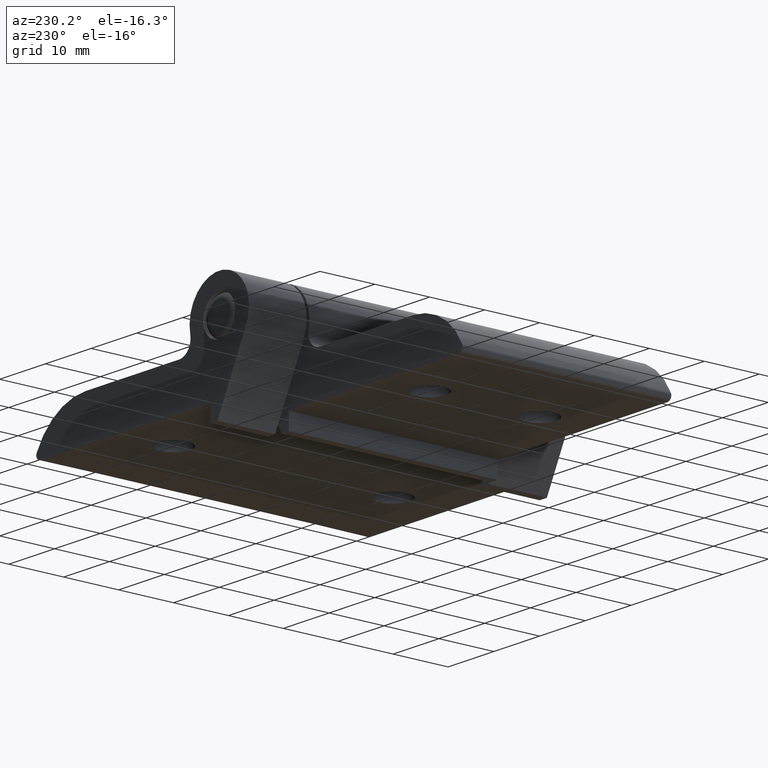
[diagram: clean part render]
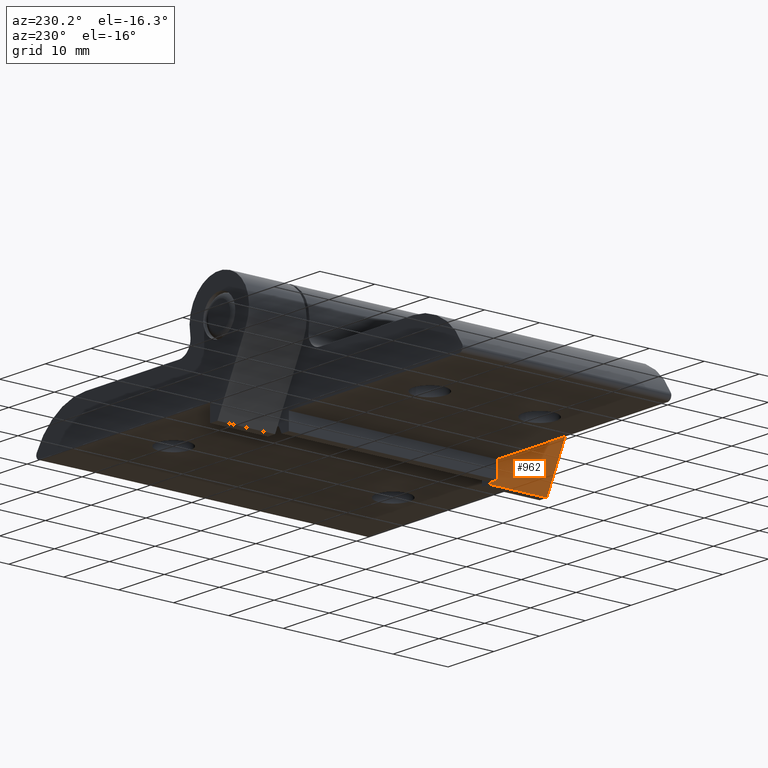
[diagram: same view with one face highlighted and labeled with its STEP entity id]
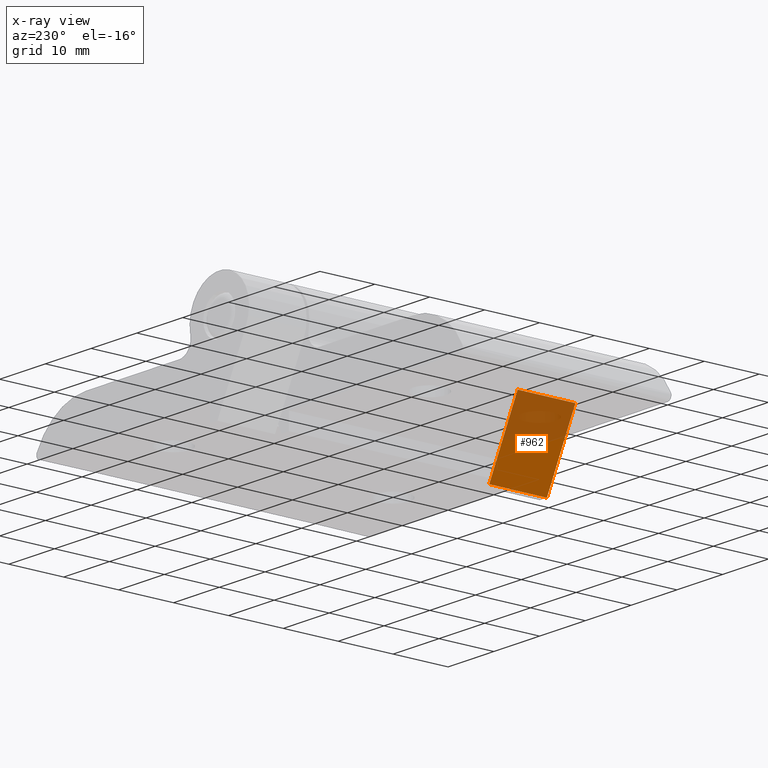
[diagram: x-ray of the same camera — body ghosted, the highlighted face saturated]
A machine part, auxiliary view. The second image highlights one B-rep face of the part: STEP entity #962.
The next image is the same camera in x-ray: the body ghosted, the highlighted face saturated — about 48% of this face is hidden behind the body in this view.
In plain terms, the highlighted planar face has unit normal (-0.8939, 0, -0.4482).
Its self-contained STEP definition (entity closure, byte-faithful):
#72=PLANE('',#1123);
#119=FACE_OUTER_BOUND('',#170,.T.);
#170=EDGE_LOOP('',(#731,#732,#733,#734));
#228=LINE('',#1562,#295);
#243=LINE('',#1605,#310);
#246=LINE('',#1612,#313);
#247=LINE('',#1613,#314);
#295=VECTOR('',#1262,10.);
#310=VECTOR('',#1301,10.);
#313=VECTOR('',#1308,10.);
#314=VECTOR('',#1309,10.);
#435=VERTEX_POINT('',#1559);
#436=VERTEX_POINT('',#1561);
#452=VERTEX_POINT('',#1603);
#454=VERTEX_POINT('',#1611);
#541=EDGE_CURVE('',#436,#435,#228,.T.);
#563=EDGE_CURVE('',#452,#435,#243,.T.);
#566=EDGE_CURVE('',#454,#452,#246,.T.);
#567=EDGE_CURVE('',#454,#436,#247,.T.);
#731=ORIENTED_EDGE('',*,*,#541,.T.);
#732=ORIENTED_EDGE('',*,*,#563,.F.);
#733=ORIENTED_EDGE('',*,*,#566,.F.);
#734=ORIENTED_EDGE('',*,*,#567,.T.);
#962=ADVANCED_FACE('',(#119),#72,.T.);
#1123=AXIS2_PLACEMENT_3D('',#1610,#1306,#1307);
#1262=DIRECTION('',(0.448207310925167,1.22582655611931E-17,-0.893929642887644));
#1301=DIRECTION('',(0.,1.,0.));
#1306=DIRECTION('center_axis',(-0.893929642887644,0.,-0.448207310925167));
#1307=DIRECTION('ref_axis',(-0.448207310925167,0.,0.893929642887644));
#1308=DIRECTION('',(0.448207310925167,0.,-0.893929642887644));
#1309=DIRECTION('',(0.,1.,0.));
#1559=CARTESIAN_POINT('',(0.399999999999999,-19.5,-15.3));
#1561=CARTESIAN_POINT('',(-5.81054267876969,-19.5,-2.91334752101359));
#1562=CARTESIAN_POINT('',(-1.65751512762906,-19.5,-11.1963771485993));
#1603=CARTESIAN_POINT('',(0.399999999999999,-30.,-15.3));
#1605=CARTESIAN_POINT('',(0.399999999999999,0.,-15.3));
#1610=CARTESIAN_POINT('Origin',(0.399999999999999,0.,-15.3));
#1611=CARTESIAN_POINT('',(-5.81054267876969,-30.,-2.91334752101359));
#1612=CARTESIAN_POINT('',(0.399999999999999,-30.,-15.3));
#1613=CARTESIAN_POINT('',(-5.81054267876969,0.,-2.91334752101359));